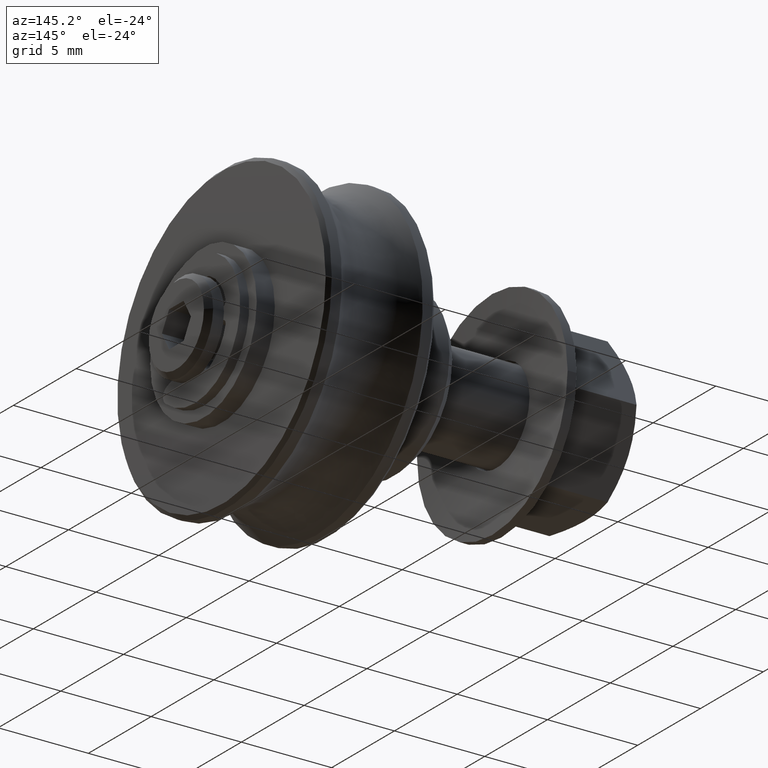
[diagram: clean part render]
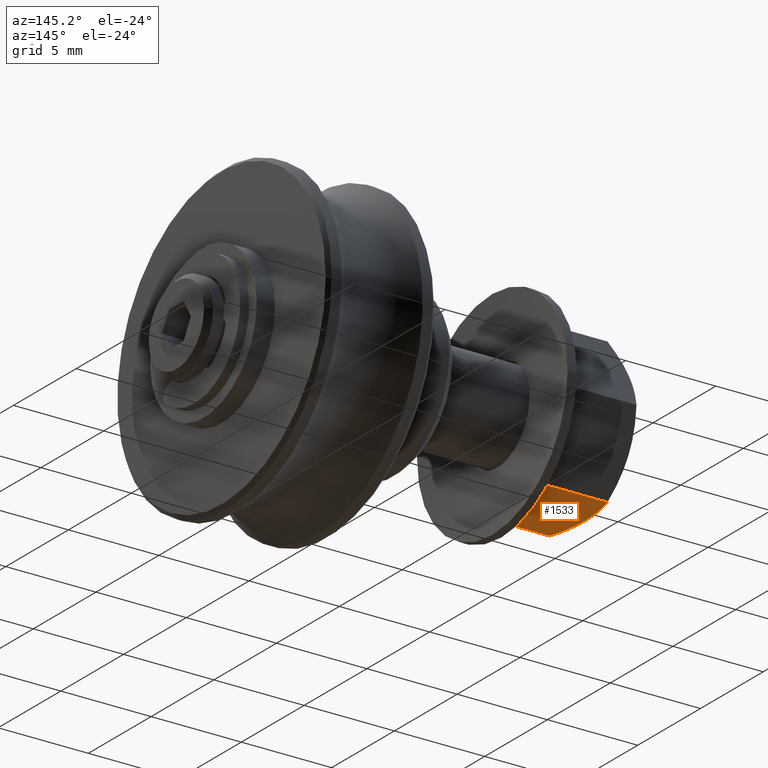
[diagram: same view with one face highlighted and labeled with its STEP entity id]
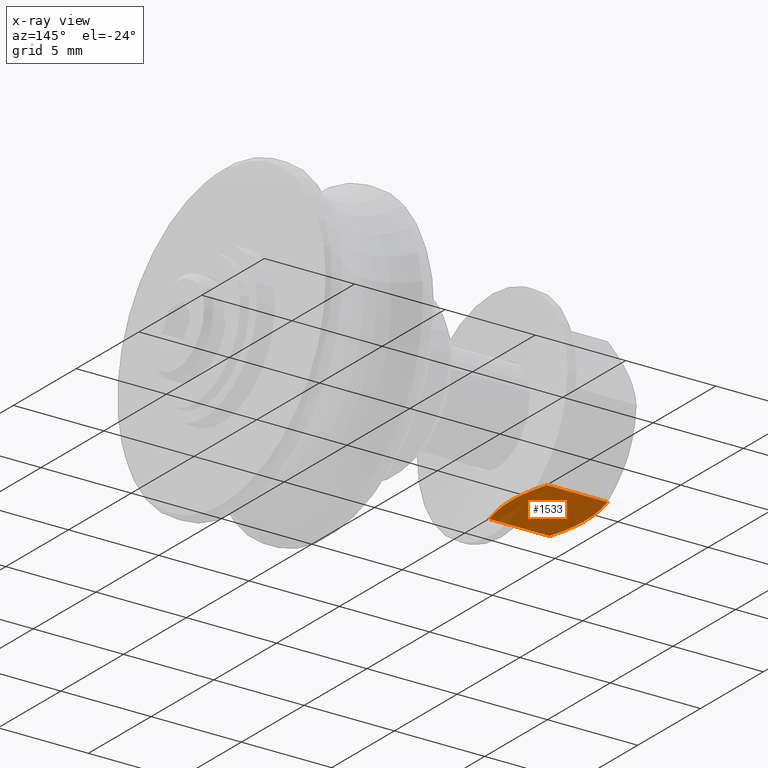
[diagram: x-ray of the same camera — body ghosted, the highlighted face saturated]
A machine part, auxiliary view. The second image highlights one B-rep face of the part: STEP entity #1533.
The next image is the same camera in x-ray: the body ghosted, the highlighted face saturated — about 10% of this face is hidden behind the body in this view.
In plain terms, the highlighted planar face has unit normal (-0, -0, -1).
Its self-contained STEP definition (entity closure, byte-faithful):
#31=(
BOUNDED_CURVE()
B_SPLINE_CURVE(2,(#2675,#2676,#2677),.UNSPECIFIED.,.F.,.F.)
B_SPLINE_CURVE_WITH_KNOTS((3,3),(0.,0.467374455231167),.UNSPECIFIED.)
CURVE()
GEOMETRIC_REPRESENTATION_ITEM()
RATIONAL_B_SPLINE_CURVE((1.,1.15470053837925,1.))
REPRESENTATION_ITEM('')
);
#41=(
BOUNDED_CURVE()
B_SPLINE_CURVE(2,(#2718,#2719,#2720),.UNSPECIFIED.,.F.,.F.)
B_SPLINE_CURVE_WITH_KNOTS((3,3),(0.,0.467374455231167),.UNSPECIFIED.)
CURVE()
GEOMETRIC_REPRESENTATION_ITEM()
RATIONAL_B_SPLINE_CURVE((1.,1.15470053837925,1.))
REPRESENTATION_ITEM('')
);
#115=PLANE('',#1827);
#224=FACE_OUTER_BOUND('',#330,.T.);
#330=EDGE_LOOP('',(#1318,#1319,#1320,#1321));
#435=LINE('',#2730,#550);
#436=LINE('',#2732,#551);
#550=VECTOR('',#2232,10.);
#551=VECTOR('',#2235,10.);
#756=VERTEX_POINT('',#2673);
#757=VERTEX_POINT('',#2674);
#766=VERTEX_POINT('',#2713);
#767=VERTEX_POINT('',#2717);
#942=EDGE_CURVE('',#756,#757,#31,.T.);
#954=EDGE_CURVE('',#767,#766,#41,.T.);
#959=EDGE_CURVE('',#756,#766,#435,.T.);
#960=EDGE_CURVE('',#757,#767,#436,.T.);
#1318=ORIENTED_EDGE('',*,*,#942,.T.);
#1319=ORIENTED_EDGE('',*,*,#960,.T.);
#1320=ORIENTED_EDGE('',*,*,#954,.T.);
#1321=ORIENTED_EDGE('',*,*,#959,.F.);
#1533=ADVANCED_FACE('',(#224),#115,.T.);
#1827=AXIS2_PLACEMENT_3D('',#2731,#2233,#2234);
#2232=DIRECTION('',(1.,0.,0.));
#2233=DIRECTION('center_axis',(0.,0.,1.));
#2234=DIRECTION('ref_axis',(1.,0.,0.));
#2235=DIRECTION('',(1.,0.,0.));
#2673=CARTESIAN_POINT('',(0.674808237962457,2.3094010767585,4.));
#2674=CARTESIAN_POINT('',(0.674808237962457,-2.3094010767585,4.));
#2675=CARTESIAN_POINT('Ctrl Pts',(0.674808237962457,2.3094010767585,4.));
#2676=CARTESIAN_POINT('Ctrl Pts',(0.00814157129579079,0.,4.));
#2677=CARTESIAN_POINT('Ctrl Pts',(0.674808237962457,-2.3094010767585,4.));
#2713=CARTESIAN_POINT('',(4.02519176203754,2.3094010767585,4.));
#2717=CARTESIAN_POINT('',(4.02519176203754,-2.3094010767585,4.));
#2718=CARTESIAN_POINT('Ctrl Pts',(4.02519176203754,-2.3094010767585,4.));
#2719=CARTESIAN_POINT('Ctrl Pts',(4.69185842870421,0.,4.));
#2720=CARTESIAN_POINT('Ctrl Pts',(4.02519176203754,2.3094010767585,4.));
#2730=CARTESIAN_POINT('',(0.,2.3094010767585,4.));
#2731=CARTESIAN_POINT('Origin',(0.,-2.3094010767585,4.));
#2732=CARTESIAN_POINT('',(0.,-2.3094010767585,4.));